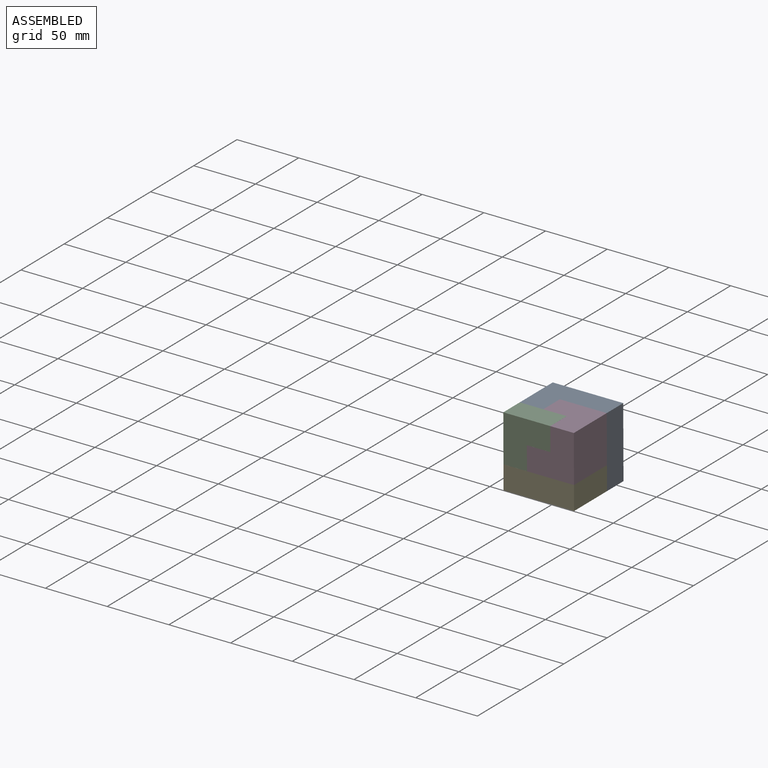
[diagram: assembled view]
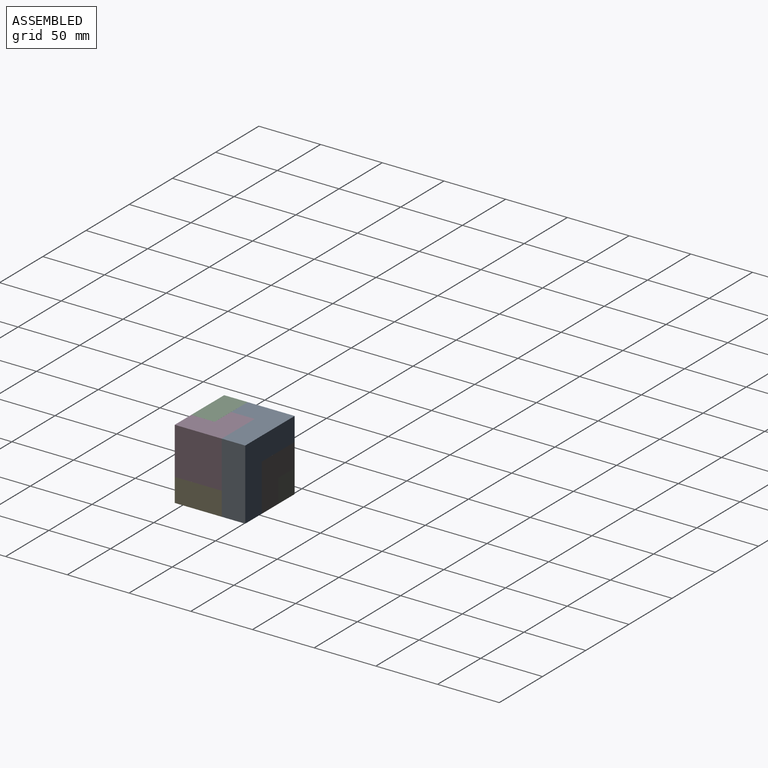
[diagram: assembled view, second angle]
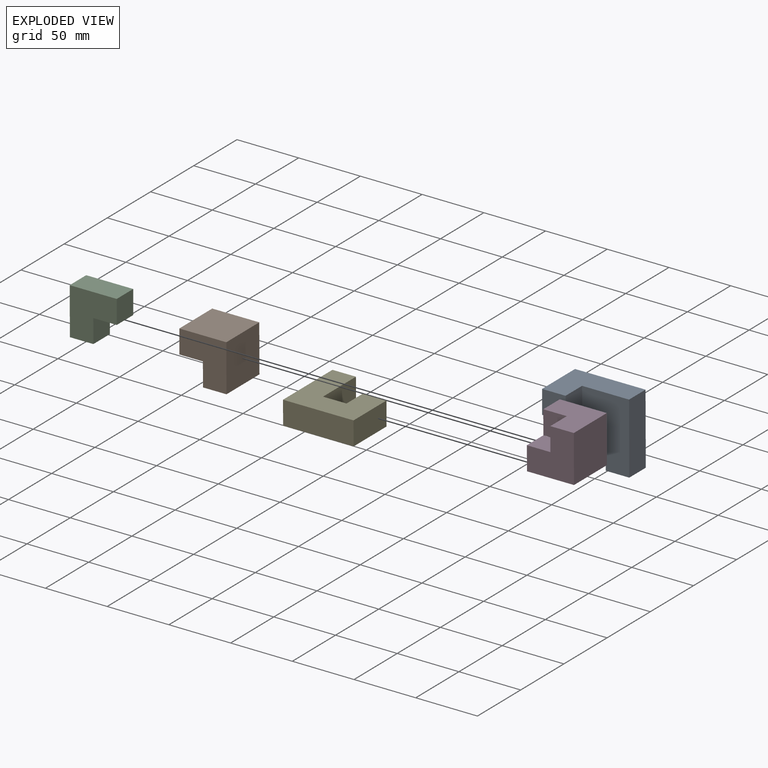
[diagram: exploded view]
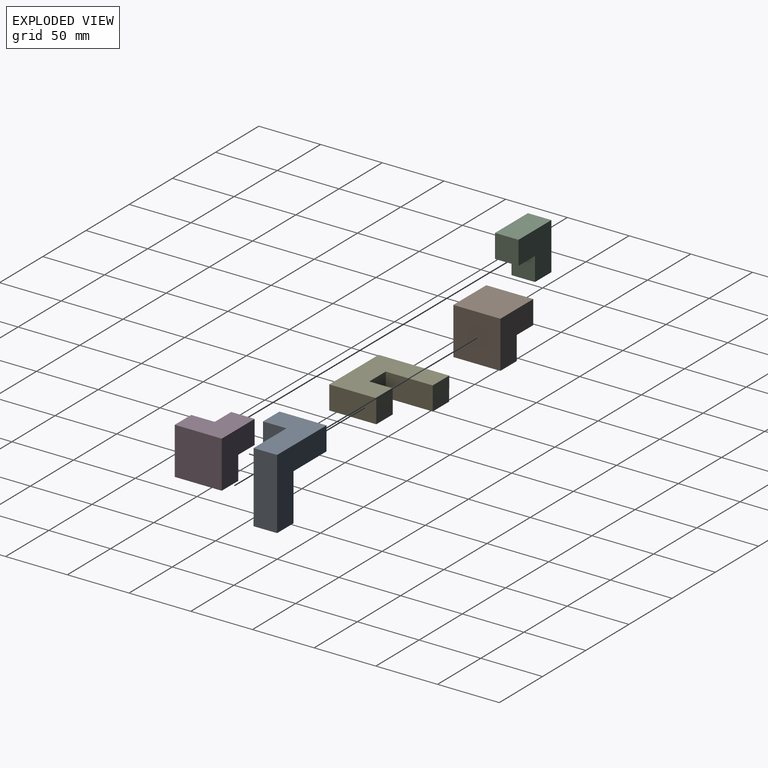
[diagram: exploded view, second angle]
ASSEMBLY  parts=5 mates=4
PART A: 10 faces, bbox 38.1x57.2x57.2 mm
  f0: plane 57.15x57.15mm, normal (-1,0,0), area 1814.5mm2, adj f1,f3,f4,f5,f6,f7
  f1: plane 19.05x19.05mm, normal (0,0,-1), area 362.9mm2, adj f0,f2,f4,f5
  f2: plane 57.15x38.1mm, normal (1,0,0), area 1451.6mm2, adj f1,f3,f4,f5,f6,f8
  f3: plane 57.15x38.1mm, normal (0,0,1), area 1451.6mm2, adj f0,f2,f5,f7,f8,f9
  f4: plane 38.1x19.05mm, normal (0,-1,0), area 725.8mm2, adj f0,f1,f2,f6
  f5: plane 57.15x19.05mm, normal (0,1,0), area 1088.7mm2, adj f0,f1,f2,f3
  f6: plane 38.1x38.1mm, normal (0,0,-1), area 1088.7mm2, adj f0,f2,f4,f7,f8,f9
  f7: plane 38.1x19.05mm, normal (0,-1,0), area 725.8mm2, adj f0,f3,f6,f9
  f8: plane 19.05x19.05mm, normal (0,1,0), area 362.9mm2, adj f2,f3,f6,f9
  f9: plane 19.05x19.05mm, normal (1,0,0), area 362.9mm2, adj f3,f6,f7,f8
PART B: 8 faces, bbox 38.1x38.1x38.1 mm
  f0: plane 38.1x38.1mm, normal (0,1,0), area 1451.6mm2, adj f1,f5,f6,f7
  f1: plane 38.1x38.1mm, normal (0,0,1), area 1451.6mm2, adj f0,f2,f6,f7
  f2: plane 38.1x19.05mm, normal (0,-1,0), area 725.8mm2, adj f1,f3,f6,f7
  f3: plane 38.1x19.05mm, normal (0,0,-1), area 725.8mm2, adj f2,f4,f6,f7
  f4: plane 38.1x19.05mm, normal (0,-1,0), area 725.8mm2, adj f3,f5,f6,f7
  f5: plane 38.1x19.05mm, normal (0,0,-1), area 725.8mm2, adj f0,f4,f6,f7
  f6: plane 38.1x38.1mm, normal (1,0,0), area 1088.7mm2, adj f0,f1,f2,f3,f4,f5
  f7: plane 38.1x38.1mm, normal (-1,0,0), area 1088.7mm2, adj f0,f1,f2,f3,f4,f5
PART C: 8 faces, bbox 19.1x38.1x38.1 mm
  f0: plane 19.05x19.05mm, normal (0,1,0), area 362.9mm2, adj f1,f2,f5,f7
  f1: plane 38.1x38.1mm, normal (1,0,0), area 1088.7mm2, adj f0,f3,f4,f5,f6,f7
  f2: plane 38.1x38.1mm, normal (-1,0,0), area 1088.7mm2, adj f0,f3,f4,f5,f6,f7
  f3: plane 38.1x19.05mm, normal (0,-1,0), area 725.8mm2, adj f1,f2,f4,f5
  f4: plane 19.05x19.05mm, normal (0,0,-1), area 362.9mm2, adj f1,f2,f3,f6
  f5: plane 38.1x19.05mm, normal (0,0,1), area 725.8mm2, adj f0,f1,f2,f3
  f6: plane 19.05x19.05mm, normal (0,1,0), area 362.9mm2, adj f1,f2,f4,f7
  f7: plane 19.05x19.05mm, normal (0,0,-1), area 362.9mm2, adj f0,f1,f2,f6
PART D: 13 faces, bbox 38.1x38.1x38.1 mm
  f0: plane 38.1x38.1mm, normal (0,-1,0), area 725.8mm2, adj f1,f2,f3,f4,f6,f7,f9,f10
  f1: plane 38.1x38.1mm, normal (-1,0,0), area 1088.7mm2, adj f0,f2,f4,f5,f7,f8
  f2: plane 38.1x38.1mm, normal (0,0,-1), area 1088.7mm2, adj f0,f1,f3,f5,f10,f12
  f3: plane 38.1x38.1mm, normal (1,0,0), area 1088.7mm2, adj f0,f2,f4,f5,f11,f12
  f4: plane 38.1x38.1mm, normal (0,0,1), area 1088.7mm2, adj f0,f1,f3,f5,f6,f8
  f5: plane 38.1x38.1mm, normal (0,1,0), area 1451.6mm2, adj f1,f2,f3,f4
  f6: plane 19.05x19.02mm, normal (1,0,0), area 362.4mm2, adj f0,f4,f8,f9
  f7: plane 19.05x19.02mm, normal (0,0,-1), area 362.4mm2, adj f0,f1,f8,f9
  f8: plane 19.05x19.05mm, normal (0,-1,0), area 362.9mm2, adj f1,f4,f6,f7,f9
  f9: plane 19.05x0.03mm, normal (0.71,0,-0.71), area 0.7mm2, adj f0,f6,f7,f8
  f10: plane 19.05x19.05mm, normal (-1,0,0), area 362.9mm2, adj f0,f2,f11,f12
  f11: plane 19.05x19.05mm, normal (0,0,1), area 362.9mm2, adj f0,f3,f10,f12
  f12: plane 19.05x19.05mm, normal (0,-1,0), area 362.9mm2, adj f2,f3,f10,f11
PART E: 10 faces, bbox 57.2x57.2x19.1 mm
  f0: plane 57.15x19.05mm, normal (1,0,0), area 1088.7mm2, adj f1,f7,f8,f9
  f1: plane 38.1x19.05mm, normal (0,1,0), area 725.8mm2, adj f0,f2,f8,f9
  f2: plane 19.05x19.05mm, normal (-1,0,0), area 362.9mm2, adj f1,f3,f8,f9
  f3: plane 19.05x19.05mm, normal (0,-1,0), area 362.9mm2, adj f2,f4,f8,f9
  f4: plane 19.05x19.05mm, normal (-1,0,0), area 362.9mm2, adj f3,f5,f8,f9
  f5: plane 38.1x19.05mm, normal (0,1,0), area 725.8mm2, adj f4,f6,f8,f9
  f6: plane 19.05x19.05mm, normal (-1,0,0), area 362.9mm2, adj f5,f7,f8,f9
  f7: plane 57.15x19.05mm, normal (0,-1,0), area 1088.7mm2, adj f0,f6,f8,f9
  f8: plane 57.15x57.15mm, normal (0,0,1), area 2177.4mm2, adj f0,f1,f2,f3,f4,f5,f6,f7
  f9: plane 57.15x57.15mm, normal (0,0,-1), area 2177.4mm2, adj f0,f1,f2,f3,f4,f5,f6,f7
PLACE A rot(axis=(0,0,-1),90deg) t=(20.73,53.65,0.51)mm
PLACE B rot(axis=(0,0,-1),90deg) t=(1.67,15.55,0.4)mm
PLACE C rot(axis=(0,0,-1),90deg) t=(-36.48,15.54,19.37)mm
PLACE D rot(axis=(0,0,-1),90deg) t=(20.67,34.57,19.53)mm
PLACE E rot(axis=(0,0,-1),90deg) t=(-17.37,53.66,0.41)mm
MATE fastened E.f5 <-> B.f4  axis (1,0,0) through (-17.4,53.64,9.93)mm
MATE fastened D.f8 <-> A.f8  axis (-1,0,0) through (-17.5,34.54,48.01)mm
MATE fastened B.f0 <-> A.f4  axis (1,0,0) through (1.58,53.59,38.56)mm
MATE fastened D.f0 <-> C.f0  axis (-1,0,0) through (1.54,15.48,48.04)mm
